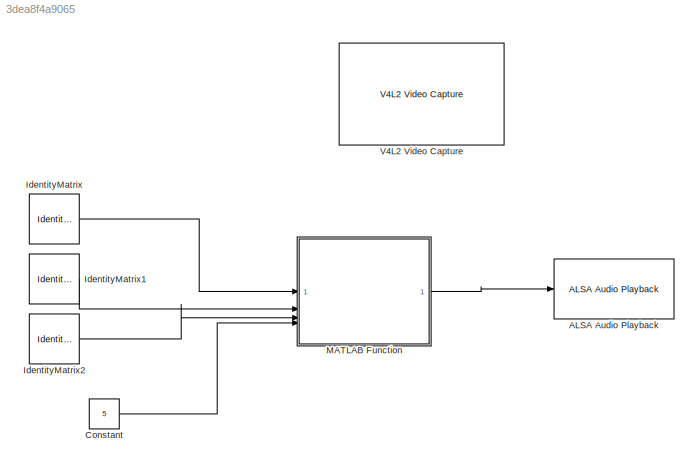
MODEL slx_3dea8f4a9065
KIND model
CONFIG AbsTol = auto
CONFIG EnableMultiTasking = on
CONFIG FixedStep = auto
CONFIG MaxStep = auto
CONFIG MinStep = auto
CONFIG RelTol = 1e-3
CONFIG SampleTimeConstraint = Unconstrained
CONFIG SolverName = FixedStepAuto
CONFIG StartTime = 0.0
CONFIG StopTime = 10.0
BLOCK [Reference] ALSA Audio Playback  REF=raspberrypiAVlib/ALSA Audio Playback
  SourceBlock = raspberrypiAVlib/ALSA Audio Playback
  SourceType = codertarget.raspi.internal.RaspiALSAAudioPlayback
BLOCK [Constant] Constant
  Value = 5
BLOCK [IdentityMatrix] IdentityMatrix
  OutputDimensions = 160
BLOCK [IdentityMatrix] IdentityMatrix1
  OutputDimensions = 160
BLOCK [IdentityMatrix] IdentityMatrix2
  OutputDimensions = 160
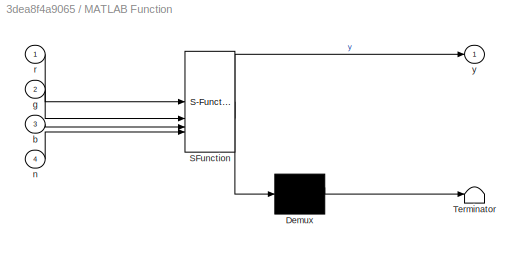
BLOCK [SubSystem] MATLAB Function
  ErrorFcn = Stateflow.Translate.translate
  LibrarySourceBlock = simulink/User-Defined\nFunctions/MATLAB Function
  PermitHierarchicalResolution = ExplicitOnly
  SFBlockType = MATLAB Function
  TreatAsAtomicUnit = on
BLOCK [Demux] MATLAB Function/ Demux 
  Outputs = 1
BLOCK [S-Function] MATLAB Function/ SFunction 
  EnableBusSupport = on
  FunctionName = sf_sfun
  PortCounts = [4 2]
  SFcnIsStateOwnerBlock = off
  SFunctionDeploymentMode = off
  Tag = Stateflow S-Function 2
BLOCK [Terminator] MATLAB Function/ Terminator 
BLOCK [Inport] MATLAB Function/b
  Port = 3
BLOCK [Inport] MATLAB Function/g
  Port = 2
BLOCK [Inport] MATLAB Function/n
  Port = 4
BLOCK [Inport] MATLAB Function/r
BLOCK [Outport] MATLAB Function/y
BLOCK [Reference] V4L2 Video Capture  REF=raspberrypiAVlib/V4L2 Video Capture
  SourceBlock = raspberrypiAVlib/V4L2 Video Capture
  SourceType = codertarget.raspi.internal.Raspiv4l2Capture
LINE Constant:1 -> MATLAB Function:4
LINE IdentityMatrix1:1 -> MATLAB Function:2
LINE IdentityMatrix2:1 -> MATLAB Function:3
LINE IdentityMatrix:1 -> MATLAB Function:1
LINE MATLAB Function:1 -> ALSA Audio Playback:1
CHART MATLAB Function states=1 transitions=1
  STATE_LABEL 'eML_blk_kernel()'
  STATE_LABEL 'SCRIPT:\n\nfunction y =findsound(r,g,b,n)   \n    coder.extrinsic(\'rgb2ind\')\n    egf = [0 0];\n    egf = size(r);\n    s = egf;\n    rgb = zeros(s(1,1),s(1,2),3);\n    for l=1:s(1,1)\n        for c=1:s(1,2)\n            rgb(l,c,:) = [r(l,c) g(l,c) b(l,c)];\n        end\n    end\n    %y ok\n    %rgb = imresize(rgb,1,"bilinear");\n    %rgb = uint16(rgb);\n    angle = trouverAngle(rgb, double(n));\n    w = pulsation...<+2634ch>'
CHART  states=0 transitions=0
